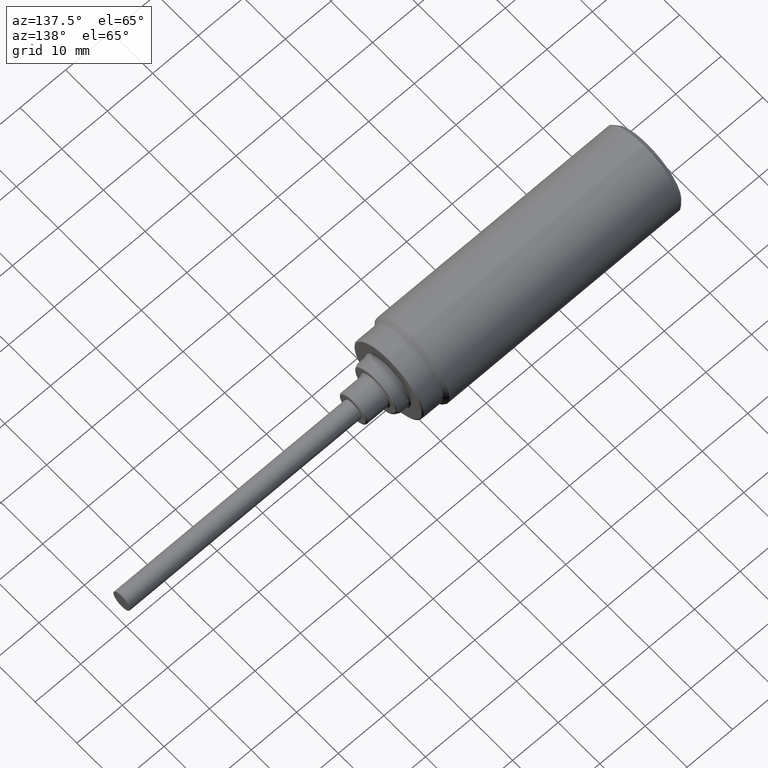
[diagram: clean part render]
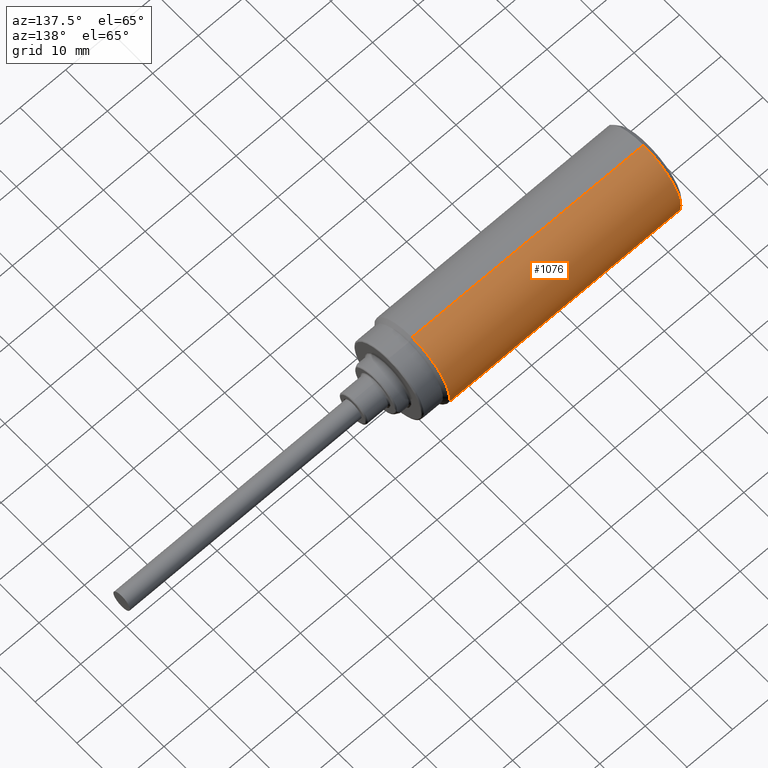
[diagram: same view with one face highlighted and labeled with its STEP entity id]
A machine part, auxiliary view. The second image highlights one B-rep face of the part: STEP entity #1076.
In plain terms, the highlighted cylindrical surface (partial cylindrical patch) has radius 9 mm, axis along (-1, -0, -0).
Its self-contained STEP definition (entity closure, byte-faithful):
#247 = EDGE_CURVE ( 'NONE', #3410, #3217, #1891, .T. ) ;
#278 = CARTESIAN_POINT ( 'NONE',  ( -0.1476377952755910100, 1.905463975580823500E-017, 3.332107562584632300E-018 ) ) ;
#288 = ORIENTED_EDGE ( 'NONE', *, *, #797, .T. ) ;
#289 = EDGE_LOOP ( 'NONE', ( #1967, #601, #288, #2965, #1901 ) ) ;
#370 = CARTESIAN_POINT ( 'NONE',  ( -0.1811023622047247000, 1.905463975580823500E-017, 3.332107562584632300E-018 ) ) ;
#424 = VERTEX_POINT ( 'NONE', #2344 ) ;
#496 = AXIS2_PLACEMENT_3D ( 'NONE', #278, #1930, #545 ) ;
#535 = FACE_OUTER_BOUND ( 'NONE', #289, .T. ) ;
#545 = DIRECTION ( 'NONE',  ( 0.0000000000000000000, 0.0000000000000000000, 1.000000000000000000 ) ) ;
#589 = DIRECTION ( 'NONE',  ( 0.0000000000000000000, 0.0000000000000000000, 1.000000000000000000 ) ) ;
#601 = ORIENTED_EDGE ( 'NONE', *, *, #2658, .T. ) ;
#619 = CARTESIAN_POINT ( 'NONE',  ( -0.1476377952755910100, 6.244763657599004200E-017, -0.3543307086614173600 ) ) ;
#797 = EDGE_CURVE ( 'NONE', #1042, #3136, #1606, .T. ) ;
#873 = CIRCLE ( 'NONE', #2758, 0.3543307086614173600 ) ;
#884 = EDGE_CURVE ( 'NONE', #424, #3410, #873, .T. ) ;
#920 = DIRECTION ( 'NONE',  ( 1.000000000000000000, 0.0000000000000000000, 0.0000000000000000000 ) ) ;
#930 = CARTESIAN_POINT ( 'NONE',  ( -0.1476377952755910100, 1.905463975580823500E-017, 3.332107562584632300E-018 ) ) ;
#1042 = VERTEX_POINT ( 'NONE', #619 ) ;
#1066 = EDGE_CURVE ( 'NONE', #3136, #3217, #1775, .T. ) ;
#1076 = ADVANCED_FACE ( 'NONE', ( #535 ), #3258, .T. ) ;
#1400 = DIRECTION ( 'NONE',  ( -1.000000000000000000, -0.0000000000000000000, -0.0000000000000000000 ) ) ;
#1606 = CIRCLE ( 'NONE', #496, 0.3543307086614173600 ) ;
#1661 = AXIS2_PLACEMENT_3D ( 'NONE', #930, #920, #2262 ) ;
#1775 = CIRCLE ( 'NONE', #1661, 0.3543307086614173600 ) ;
#1845 = CARTESIAN_POINT ( 'NONE',  ( 1.856299212598424800, 1.905463975580823500E-017, 0.3543307086614173600 ) ) ;
#1847 = LINE ( 'NONE', #2995, #2245 ) ;
#1891 = LINE ( 'NONE', #3213, #2491 ) ;
#1901 = ORIENTED_EDGE ( 'NONE', *, *, #247, .F. ) ;
#1930 = DIRECTION ( 'NONE',  ( 1.000000000000000000, 0.0000000000000000000, 0.0000000000000000000 ) ) ;
#1967 = ORIENTED_EDGE ( 'NONE', *, *, #884, .F. ) ;
#2093 = CARTESIAN_POINT ( 'NONE',  ( -0.1476377952755910100, 0.3543307086614173600, 0.0000000000000000000 ) ) ;
#2245 = VECTOR ( 'NONE', #1400, 39.37007874015748100 ) ;
#2262 = DIRECTION ( 'NONE',  ( 0.0000000000000000000, 0.0000000000000000000, 1.000000000000000000 ) ) ;
#2344 = CARTESIAN_POINT ( 'NONE',  ( 1.856299212598424800, 6.244763657599004200E-017, -0.3543307086614173600 ) ) ;
#2371 = AXIS2_PLACEMENT_3D ( 'NONE', #370, #3084, #3098 ) ;
#2491 = VECTOR ( 'NONE', #3163, 39.37007874015748100 ) ;
#2502 = DIRECTION ( 'NONE',  ( 1.000000000000000000, 0.0000000000000000000, 0.0000000000000000000 ) ) ;
#2658 = EDGE_CURVE ( 'NONE', #424, #1042, #1847, .T. ) ;
#2758 = AXIS2_PLACEMENT_3D ( 'NONE', #2991, #2502, #589 ) ;
#2965 = ORIENTED_EDGE ( 'NONE', *, *, #1066, .T. ) ;
#2991 = CARTESIAN_POINT ( 'NONE',  ( 1.856299212598424800, 1.905463975580823500E-017, 3.332107562584632300E-018 ) ) ;
#2995 = CARTESIAN_POINT ( 'NONE',  ( -0.1811023622047247000, 6.244763657599004200E-017, -0.3543307086614173600 ) ) ;
#3084 = DIRECTION ( 'NONE',  ( -1.000000000000000000, -0.0000000000000000000, -0.0000000000000000000 ) ) ;
#3098 = DIRECTION ( 'NONE',  ( 0.0000000000000000000, 0.0000000000000000000, 1.000000000000000000 ) ) ;
#3136 = VERTEX_POINT ( 'NONE', #2093 ) ;
#3163 = DIRECTION ( 'NONE',  ( -1.000000000000000000, -0.0000000000000000000, -0.0000000000000000000 ) ) ;
#3213 = CARTESIAN_POINT ( 'NONE',  ( -0.1811023622047247000, 1.905463975580823500E-017, 0.3543307086614173600 ) ) ;
#3217 = VERTEX_POINT ( 'NONE', #3269 ) ;
#3258 = CYLINDRICAL_SURFACE ( 'NONE', #2371, 0.3543307086614173600 ) ;
#3269 = CARTESIAN_POINT ( 'NONE',  ( -0.1476377952755910100, 1.905463975580823500E-017, 0.3543307086614173600 ) ) ;
#3410 = VERTEX_POINT ( 'NONE', #1845 ) ;